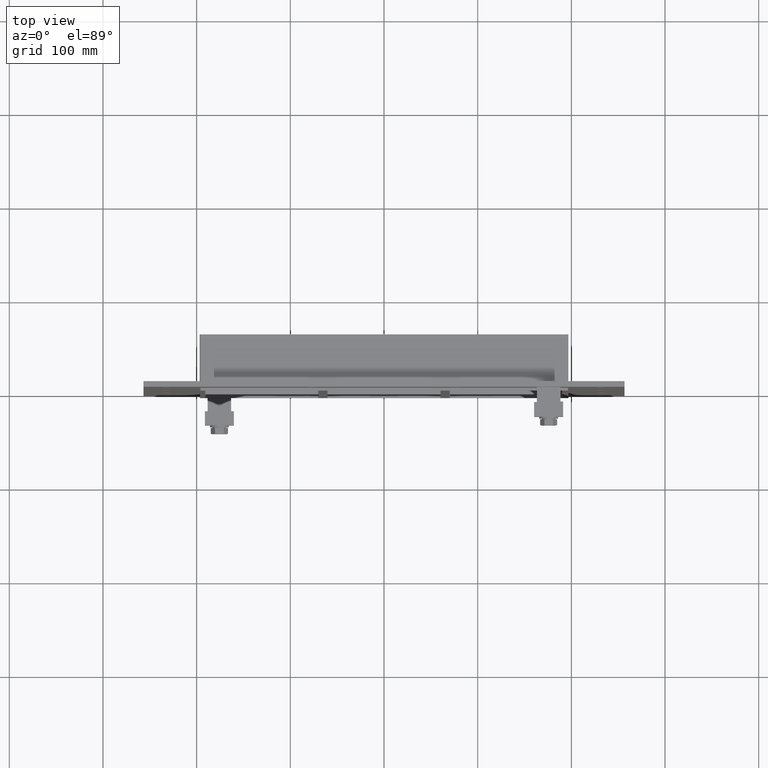
[diagram: clean part render]
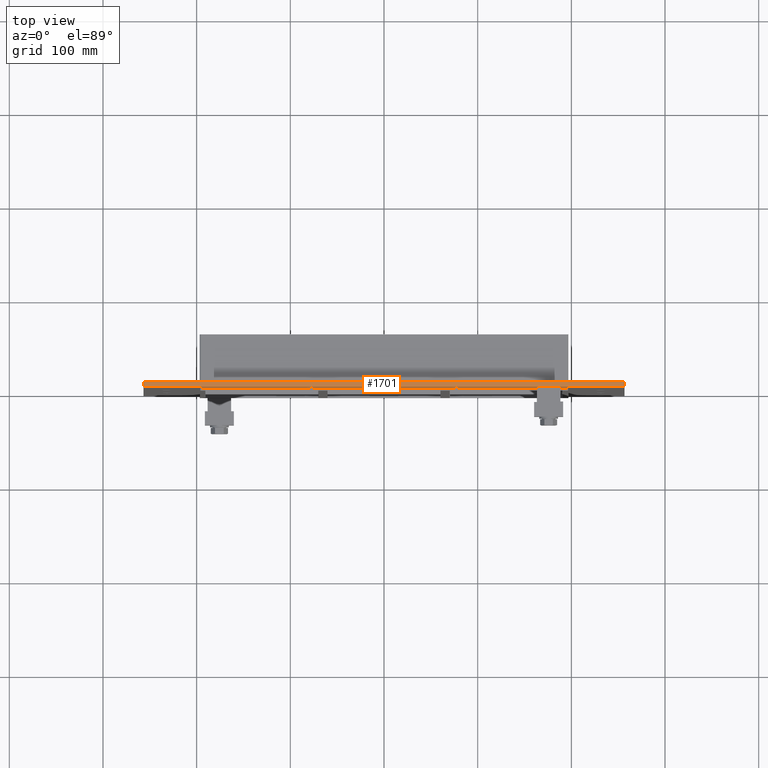
[diagram: same view with one face highlighted and labeled with its STEP entity id]
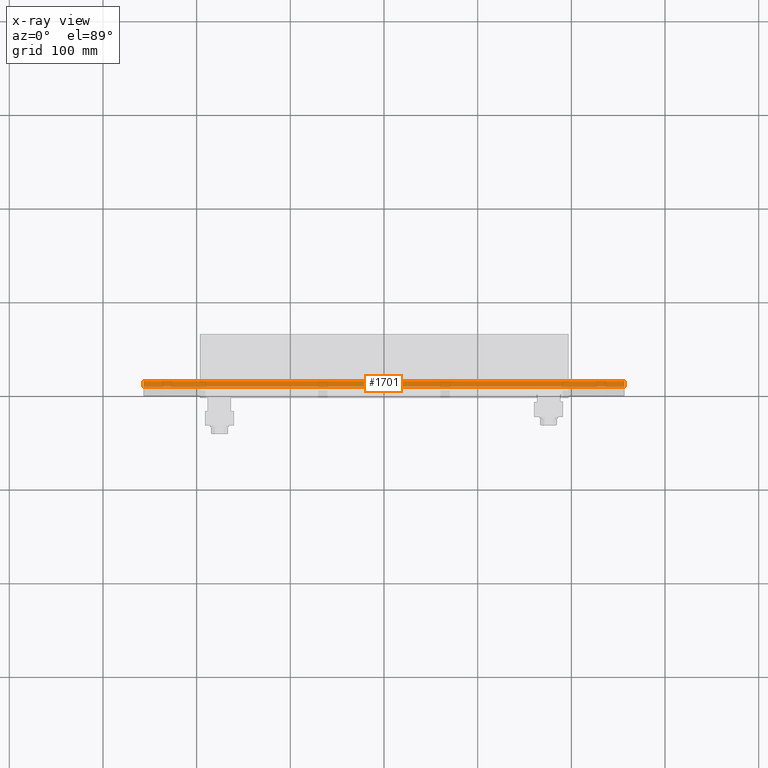
[diagram: x-ray of the same camera — body ghosted, the highlighted face saturated]
A machine part, top view. The second image highlights one B-rep face of the part: STEP entity #1701.
The next image is the same camera in x-ray: the body ghosted, the highlighted face saturated — about 0% of this face is hidden behind the body in this view.
In plain terms, the highlighted planar face has unit normal (0, 0, 1).
Its self-contained STEP definition (entity closure, byte-faithful):
#1347=CARTESIAN_POINT('',(-256.75000000000006,6.000000000000001,290.0));
#1348=VERTEX_POINT('',#1347);
#1349=CARTESIAN_POINT('',(256.75000000000006,6.000000000000001,290.0));
#1350=VERTEX_POINT('',#1349);
#1351=CARTESIAN_POINT('',(-256.75000000000006,6.000000000000001,290.0));
#1352=DIRECTION('',(1.0,0.0,0.0));
#1353=VECTOR('',#1352,513.50000000000011);
#1354=LINE('',#1351,#1353);
#1355=EDGE_CURVE('',#1348,#1350,#1354,.T.);
#1493=CARTESIAN_POINT('',(-256.75000000000006,0.0,290.0));
#1494=VERTEX_POINT('',#1493);
#1495=CARTESIAN_POINT('',(256.75000000000006,0.0,290.0));
#1496=VERTEX_POINT('',#1495);
#1497=CARTESIAN_POINT('',(-256.75000000000006,0.0,290.0));
#1498=DIRECTION('',(1.0,0.0,0.0));
#1499=VECTOR('',#1498,513.50000000000011);
#1500=LINE('',#1497,#1499);
#1501=EDGE_CURVE('',#1494,#1496,#1500,.T.);
#1640=CARTESIAN_POINT('',(-256.75000000000006,0.0,290.0));
#1641=DIRECTION('',(0.0,1.0,0.0));
#1642=VECTOR('',#1641,6.000000000000001);
#1643=LINE('',#1640,#1642);
#1644=EDGE_CURVE('',#1494,#1348,#1643,.T.);
#1681=CARTESIAN_POINT('',(256.75000000000006,0.0,290.0));
#1682=DIRECTION('',(0.0,1.0,0.0));
#1683=VECTOR('',#1682,6.000000000000001);
#1684=LINE('',#1681,#1683);
#1685=EDGE_CURVE('',#1496,#1350,#1684,.T.);
#1690=CARTESIAN_POINT('',(-256.75000000000006,0.0,290.0));
#1691=DIRECTION('',(0.0,0.0,1.0));
#1692=DIRECTION('',(1.0,0.0,0.0));
#1693=AXIS2_PLACEMENT_3D('',#1690,#1691,#1692);
#1694=PLANE('',#1693);
#1695=ORIENTED_EDGE('',*,*,#1501,.T.);
#1696=ORIENTED_EDGE('',*,*,#1685,.T.);
#1697=ORIENTED_EDGE('',*,*,#1355,.F.);
#1698=ORIENTED_EDGE('',*,*,#1644,.F.);
#1699=EDGE_LOOP('',(#1695,#1696,#1697,#1698));
#1700=FACE_OUTER_BOUND('',#1699,.T.);
#1701=ADVANCED_FACE('',(#1700),#1694,.T.);